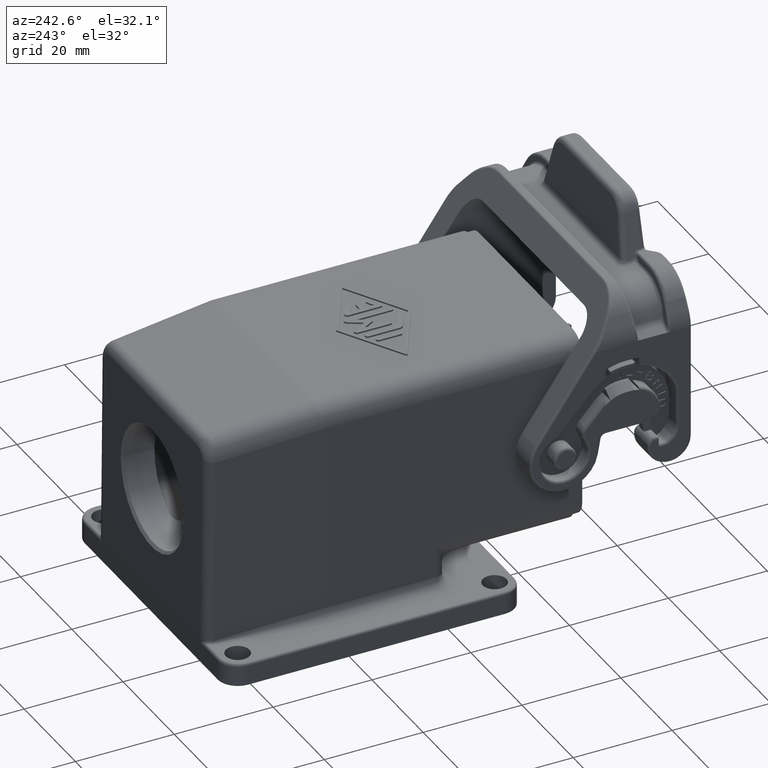
[diagram: clean part render]
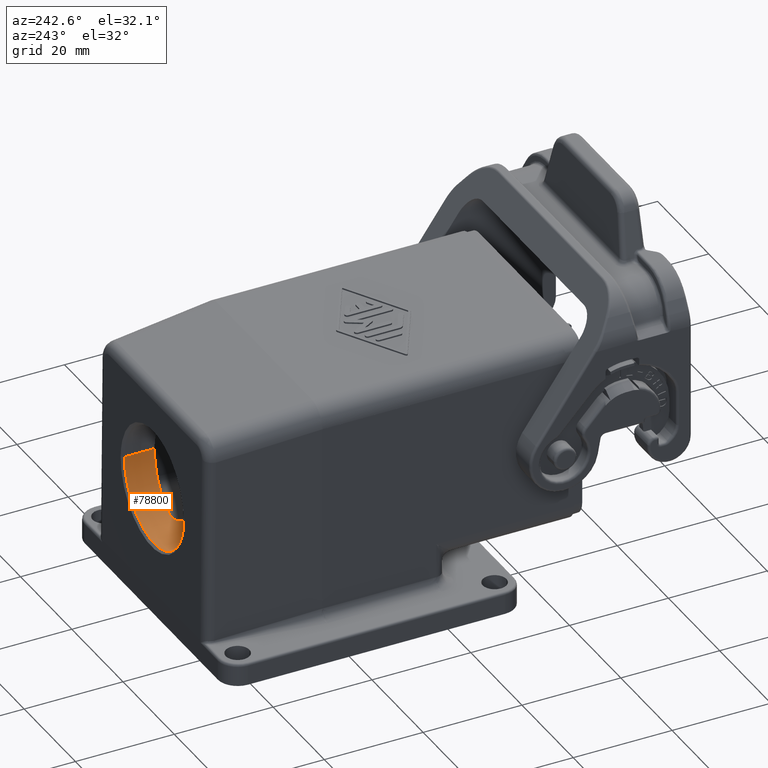
[diagram: same view with one face highlighted and labeled with its STEP entity id]
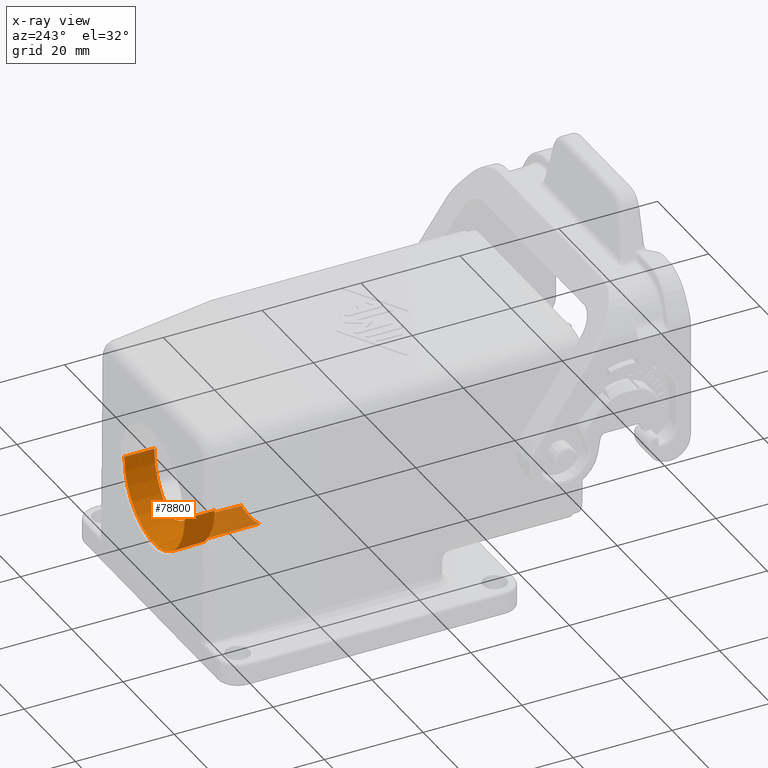
[diagram: x-ray of the same camera — body ghosted, the highlighted face saturated]
A machine part, auxiliary view. The second image highlights one B-rep face of the part: STEP entity #78800.
The next image is the same camera in x-ray: the body ghosted, the highlighted face saturated — about 18% of this face is hidden behind the body in this view.
In plain terms, the highlighted cylindrical surface (partial cylindrical patch) has radius 11.8 mm, axis along (0, -1, 0).
Its self-contained STEP definition (entity closure, byte-faithful):
#25710=CARTESIAN_POINT('',(39.5854375536447,55.9545149999983,
83.4000000000002));
#25720=DIRECTION('',(-0.999847695156391,-5.5502696614051E-17,
0.0174524064372832));
#25730=DIRECTION('',(-0.0174524064372832,-9.68803173089413E-19,
-0.999847695156391));
#25740=AXIS2_PLACEMENT_3D('',#25710,#25720,#25730);
#25750=ELLIPSE('',#25740,11.8017974709181,11.8);
#25760=CARTESIAN_POINT('',(39.5854375536447,44.1545149999983,
83.4000000000002));
#25770=VERTEX_POINT('',#25760);
#25820=CARTESIAN_POINT('',(39.4046438206235,50.3013075515534,
73.0423339721324));
#25830=VERTEX_POINT('',#25820);
#25840=EDGE_CURVE('',#25830,#25770,#25750,.T.);
#69730=CARTESIAN_POINT('',(39.5854375536447,67.7545149999983,
83.4000000000002));
#69740=VERTEX_POINT('',#69730);
#70150=CARTESIAN_POINT('',(39.4046438206235,61.6077224484432,
73.0423339721324));
#70160=VERTEX_POINT('',#70150);
#70190=EDGE_CURVE('',#69740,#70160,#25750,.T.);
#71520=CARTESIAN_POINT('',(41.1319105215989,61.6124777089039,
57.4000000000002));
#71530=DIRECTION('',(0.0174524056274811,-0.000304632873381272,
0.999847648762863));
#71540=DIRECTION('',(-0.999847695156391,-0.,0.0174524064372832));
#71550=AXIS2_PLACEMENT_3D('',#71520,#71530,#71540);
#71560=CYLINDRICAL_SURFACE('',#71550,2.);
#71610=CARTESIAN_POINT('',(41.3549903181106,59.6082791804822,
72.179928373066));
#71620=VERTEX_POINT('',#71610);
#71650=CARTESIAN_POINT('',(32.8316055413772,55.9545149999983,
83.4000000000002));
#71660=DIRECTION('',(1.,5.55111512312578E-17,5.55111512312578E-17));
#71670=DIRECTION('',(-5.55111512312578E-17,1.,-3.08148791101958E-33));
#71680=AXIS2_PLACEMENT_3D('',#71650,#71660,#71670);
#71690=CYLINDRICAL_SURFACE('',#71680,11.8);
#71700=CARTESIAN_POINT('',(39.4046438206235,61.6077224484432,
73.0423339721324));
#71710=CARTESIAN_POINT('',(39.4040789657357,61.5484323183061,
73.009973457282));
#71720=CARTESIAN_POINT('',(39.4061607593629,61.4888464827794,
72.9781136203391));
#71730=CARTESIAN_POINT('',(39.4109686615533,61.4291532338117,
72.9468504167947));
#71740=CARTESIAN_POINT('',(39.4157756365618,61.3694714964146,
72.9155932422165));
#71750=CARTESIAN_POINT('',(39.4233099960518,61.3096670823848,
72.8849247420731));
#71760=CARTESIAN_POINT('',(39.4336439603677,61.2499762870718,
72.8549495137717));
#71770=CARTESIAN_POINT('',(39.4388108455611,61.2201314494999,
72.8399621808815));
#71780=CARTESIAN_POINT('',(39.4446723708185,61.1903409762792,
72.82516077797));
#71790=CARTESIAN_POINT('',(39.4512416317638,61.1606012058756,
72.8105398429867));
#71800=CARTESIAN_POINT('',(39.4578127259053,61.1308531363901,
72.7959148279337));
#71810=CARTESIAN_POINT('',(39.4650986410752,61.1011292725277,
72.7814575287472));
#71820=CARTESIAN_POINT('',(39.4731052133295,61.0714798014428,
72.7671889313891));
#71830=CARTESIAN_POINT('',(39.4811117754899,61.0418303677375,
72.7529203520197));
#71840=CARTESIAN_POINT('',(39.4898389391247,61.0122556033746,
72.7388406047429));
#71850=CARTESIAN_POINT('',(39.4992878830868,60.9828065840256,
72.7249691454312));
#71860=CARTESIAN_POINT('',(39.5087368232148,60.9533575766263,
72.7110976917482));
#71870=CARTESIAN_POINT('',(39.5189074613771,60.9240346012451,
72.6974346544643));
#71880=CARTESIAN_POINT('',(39.5297963712396,60.8948886389695,
72.6839975593809));
#71890=CARTESIAN_POINT('',(39.5406852863439,60.8657426626636,
72.6705604578291));
#71900=CARTESIAN_POINT('',(39.5522923636918,60.8367739895759,
72.6573494218211));
#71910=CARTESIAN_POINT('',(39.5646098504691,60.8080325091868,
72.6443797116075));
#71920=CARTESIAN_POINT('',(39.5769273548054,60.7792909878256,
72.631409982905));
#71930=CARTESIAN_POINT('',(39.5899551328888,60.7507769432129,
72.6186816945372));
#71940=CARTESIAN_POINT('',(39.6036816377403,60.7225381772426,
72.6062075718839));
#71950=CARTESIAN_POINT('',(39.6174006189232,60.6943148892921,
72.5937402864527));
#71960=CARTESIAN_POINT('',(39.63185104043,60.6662964693168,
72.5814958458338));
#71970=CARTESIAN_POINT('',(39.6470445636071,60.6385062179181,
72.5694771007827));
#71980=CARTESIAN_POINT('',(39.6622364487675,60.6107189625921,
72.557459651475));
#71990=CARTESIAN_POINT('',(39.6781648503385,60.5831730264674,
72.5456736630296));
#72000=CARTESIAN_POINT('',(39.6948167348401,60.5559288041611,
72.5341364354674));
#72010=CARTESIAN_POINT('',(39.7114685895875,60.5286846305359,
72.5225992285205));
#72020=CARTESIAN_POINT('',(39.7288437124712,60.5017425747028,
72.5113109402481));
#72030=CARTESIAN_POINT('',(39.7469224570916,60.4751620909161,
72.5002867065394));
#72040=CARTESIAN_POINT('',(39.7650011927533,60.4485816203013,
72.4892624782938));
#72050=CARTESIAN_POINT('',(39.7837832909538,60.4223631234538,
72.4785024535253));
#72060=CARTESIAN_POINT('',(39.8032430607411,60.3965636380467,
72.4680192143703));
#72070=CARTESIAN_POINT('',(39.8227028465425,60.3707641314086,
72.4575359665882));
#72080=CARTESIAN_POINT('',(39.8428400056425,60.3453840223758,
72.4473296403029));
#72090=CARTESIAN_POINT('',(39.863623717833,60.3204765817706,
72.4374100018961));
#72100=CARTESIAN_POINT('',(39.884407476022,60.2955690860403,
72.4274903415353));
#72110=CARTESIAN_POINT('',(39.9058374580062,60.2711346149375,
72.4178574877515));
#72120=CARTESIAN_POINT('',(39.9278789972028,60.2472214796465,
72.4085182491357));
#72130=CARTESIAN_POINT('',(39.9499303846547,60.223297659863,
72.3991748377076));
#72140=CARTESIAN_POINT('',(39.9725424953691,60.1999455502473,
72.3901443678967));
#72150=CARTESIAN_POINT('',(39.9958483416693,60.1770422306044,
72.3813674266366));
#72160=CARTESIAN_POINT('',(40.0191518199114,60.1541412381197,
72.372591377183));
#72170=CARTESIAN_POINT('',(40.0431224315338,60.1317206468296,
72.3640813902609));
#72180=CARTESIAN_POINT('',(40.0677243201158,60.1098392066227,
72.3558485732111));
#72190=CARTESIAN_POINT('',(40.0923261351434,60.0879578318367,
72.3476157807756));
#72200=CARTESIAN_POINT('',(40.1175588104793,60.0666160337602,
72.3396602978059));
#72210=CARTESIAN_POINT('',(40.1433789389496,60.0458693651196,
72.3319911700876));
#72220=CARTESIAN_POINT('',(40.1691990333678,60.0251227238401,
72.3243220524834));
#72230=CARTESIAN_POINT('',(40.195606112001,60.0049716138672,
72.3169394153947));
#72240=CARTESIAN_POINT('',(40.2225504366717,59.9854666888042,
72.3098499341744));
#72250=CARTESIAN_POINT('',(40.2494947698635,59.9659617575728,
72.302760450712));
#72260=CARTESIAN_POINT('',(40.2769758415107,59.9471033757515,
72.2959642313368));
#72270=CARTESIAN_POINT('',(40.3049391250891,59.9289359414165,
72.2894654412839));
#72280=CARTESIAN_POINT('',(40.3329024641727,59.9107684710205,
72.2829666383314));
#72290=CARTESIAN_POINT('',(40.3613474846686,59.8932922626645,
72.2767653536093));
#72300=CARTESIAN_POINT('',(40.3902167385427,59.8765444657443,
72.2708632468723));
#72310=CARTESIAN_POINT('',(40.4190861006825,59.8597966060164,
72.2649611180012));
#72320=CARTESIAN_POINT('',(40.4483791611256,59.8437774107615,
72.2593582347567));
#72330=CARTESIAN_POINT('',(40.4780377434165,59.8285161816246,
72.2540538829244));
#72340=CARTESIAN_POINT('',(40.5076937819789,59.8132562613981,
72.2487499860305));
#72350=CARTESIAN_POINT('',(40.5378406179732,59.798689731669,
72.2437221970934));
#72360=CARTESIAN_POINT('',(40.5684236254925,59.7848601555936,
72.2389760331319));
#72370=CARTESIAN_POINT('',(40.5990064967986,59.7710306411135,
72.2342298903094));
#72380=CARTESIAN_POINT('',(40.6300249057063,59.7579384253263,
72.2297654721376));
#72390=CARTESIAN_POINT('',(40.6614171946643,59.7456218127099,
72.2255868550242));
#72400=CARTESIAN_POINT('',(40.6928094201576,59.7333052249937,
72.2214082463586));
#72410=CARTESIAN_POINT('',(40.7245749228773,59.7217645051509,
72.2175155102444));
#72420=CARTESIAN_POINT('',(40.7566470149626,59.711031128262,
72.2139110240401));
#72430=CARTESIAN_POINT('',(40.7887190982379,59.7002977543214,
72.2103065388259));
#72440=CARTESIAN_POINT('',(40.8210971403468,59.6903719376967,
72.2069903592945));
#72450=CARTESIAN_POINT('',(40.8537113713726,59.681277348914,
72.2039630942596));
#72460=CARTESIAN_POINT('',(40.8863256500591,59.6721827468411,
72.2009358248009));
#72470=CARTESIAN_POINT('',(40.9191754782109,59.6639195302647,
72.1981975093489));
#72480=CARTESIAN_POINT('',(40.9521901137362,59.6565030667921,
72.1957470417117));
#72490=CARTESIAN_POINT('',(40.9852048570132,59.649086579114,
72.1932965660768));
#72500=CARTESIAN_POINT('',(41.0183837790138,59.6425169408924,
72.1911339610907));
#72510=CARTESIAN_POINT('',(41.0516574389363,59.6368012038341,
72.1892565673353));
#72520=CARTESIAN_POINT('',(41.0849190793229,59.6310875314873,
72.1873798517559));
#72530=CARTESIAN_POINT('',(41.1182966746719,59.6262202351983,
72.1857858655764));
#72540=CARTESIAN_POINT('',(41.1519101432804,59.6221892045191,
72.1844676484133));
#72550=CARTESIAN_POINT('',(41.1855087208117,59.6181599596237,
72.1831500152325));
#72560=CARTESIAN_POINT('',(41.2192784377786,59.6149772335514,
72.1821115088028));
#72570=CARTESIAN_POINT('',(41.253149312756,59.6126553802518,
72.1813544062416));
#72580=CARTESIAN_POINT('',(41.2870201053218,59.6103335326016,
72.1805973055226));
#72590=CARTESIAN_POINT('',(41.3209914163416,59.6088726335216,
72.1801216282956));
#72600=CARTESIAN_POINT('',(41.3549903181107,59.6082791804838,
72.1799283730719));
#72610=B_SPLINE_CURVE_WITH_KNOTS('',3,(#71700,#71710,#71720,#71730,
#71740,#71750,#71760,#71770,#71780,#71790,#71800,#71810,#71820,#71830,
#71840,#71850,#71860,#71870,#71880,#71890,#71900,#71910,#71920,#71930,
#71940,#71950,#71960,#71970,#71980,#71990,#72000,#72010,#72020,#72030,
#72040,#72050,#72060,#72070,#72080,#72090,#72100,#72110,#72120,#72130,
#72140,#72150,#72160,#72170,#72180,#72190,#72200,#72210,#72220,#72230,
#72240,#72250,#72260,#72270,#72280,#72290,#72300,#72310,#72320,#72330,
#72340,#72350,#72360,#72370,#72380,#72390,#72400,#72410,#72420,#72430,
#72440,#72450,#72460,#72470,#72480,#72490,#72500,#72510,#72520,#72530,
#72540,#72550,#72560,#72570,#72580,#72590,#72600),.UNSPECIFIED.,.F.,.F.,
(4,3,3,3,3,3,3,3,3,3,3,3,3,3,3,3,3,3,3,3,3,3,3,3,3,3,3,3,3,3,4),(0.,
0.202649347362717,0.405352269890127,0.506700113775235,0.608196848802629,
0.709846691322581,0.811536266766206,0.913159866414404,1.01462344306998,
1.11607665449242,1.21782222512383,1.31973457468774,1.42168076757122,
1.52353427099743,1.62518052052965,1.72659217138928,1.82825766222322,
1.93017553580155,2.03220102651451,2.13418892217548,2.23600036451093,
2.33750988331479,2.43902440768609,2.54085351478104,2.64285367715966,
2.744874377132,2.84676554760481,2.94838491458542,3.04982204214769,
3.15156892152212,3.25352609733543),.UNSPECIFIED.);
#72620=SURFACE_CURVE('',#72610,(#71560,#71690),.CURVE_3D.);
#72630=EDGE_CURVE('',#70160,#71620,#72620,.T.);
#76260=CARTESIAN_POINT('',(32.8316055413772,55.9545149999983,
83.4000000000002));
#76270=DIRECTION('',(1.,5.55111512312578E-17,5.55111512312578E-17));
#76280=DIRECTION('',(-5.55111512312578E-17,1.,-3.08148791101958E-33));
#76290=AXIS2_PLACEMENT_3D('',#76260,#76270,#76280);
#76300=CYLINDRICAL_SURFACE('',#76290,11.8);
#76310=CARTESIAN_POINT('',(32.8316055413772,67.7545149999983,
83.4000000000002));
#76320=DIRECTION('',(1.,5.55111512312578E-17,5.55111512312578E-17));
#76330=VECTOR('',#76320,1.);
#76340=LINE('',#76310,#76330);
#76350=CARTESIAN_POINT('',(33.5192522370875,67.7545149999983,
83.4000000000002));
#76360=VERTEX_POINT('',#76350);
#76370=EDGE_CURVE('',#76360,#69740,#76340,.T.);
#76380=ORIENTED_EDGE('',*,*,#76370,.F.);
#76390=ORIENTED_EDGE('',*,*,#70190,.F.);
#76400=ORIENTED_EDGE('',*,*,#72630,.F.);
#76410=CARTESIAN_POINT('',(93.1316055413772,58.7045149999983,
57.4000000000002));
#76420=DIRECTION('',(-0.0174524064372835,-0.999847695156391,
-9.68803173089419E-19));
#76430=DIRECTION('',(0.999847695156391,-0.0174524064372835,
-8.4546172068172E-21));
#76440=AXIS2_PLACEMENT_3D('',#76410,#76420,#76430);
#76450=PLANE('',#76440);
#76460=CARTESIAN_POINT('',(41.3549903181106,59.6082791804822,
72.179928373066));
#76470=CARTESIAN_POINT('',(42.3113741435073,59.5915854387136,
72.1744921336425));
#76480=CARTESIAN_POINT('',(43.2677581730514,59.5748916933826,
72.1690971002033));
#76490=CARTESIAN_POINT('',(44.2241423992346,59.5581979446182,
72.1637430950206));
#76500=CARTESIAN_POINT('',(45.1805266254171,59.5415041958539,
72.1583890898379));
#76510=CARTESIAN_POINT('',(46.136911048239,59.5248104436576,
72.1530761129213));
#76520=CARTESIAN_POINT('',(47.0932956601915,59.5081166881597,
72.1478039902469));
#76530=CARTESIAN_POINT('',(48.0496802721432,59.4914229326617,
72.1425318675725));
#76540=CARTESIAN_POINT('',(49.0060650732258,59.4747291738626,
72.1373005991468));
#76550=CARTESIAN_POINT('',(49.9624500559285,59.4580354118931,
72.1321100145842));
#76560=CARTESIAN_POINT('',(50.9188350386366,59.4413416499236,
72.1269194300216));
#76570=CARTESIAN_POINT('',(51.8752202029383,59.4246478847843,
72.1217695293269));
#76580=CARTESIAN_POINT('',(52.8316055413951,59.4079541166052,
72.1166601456889));
#76590=B_SPLINE_CURVE_WITH_KNOTS('',3,(#76460,#76470,#76480,#76490,
#76500,#76510,#76520,#76530,#76540,#76550,#76560,#76570,#76580),
.UNSPECIFIED.,.F.,.F.,(4,3,3,3,4),(0.,2.86963477283941,5.73926933197676,
8.60890370643045,11.4785378141151),.UNSPECIFIED.);
#76600=SURFACE_CURVE('',#76590,(#76450,#71690),.CURVE_3D.);
#76610=CARTESIAN_POINT('',(52.8316055413772,59.4079541166055,
72.116660145689));
#76620=VERTEX_POINT('',#76610);
#76630=EDGE_CURVE('',#71620,#76620,#76600,.T.);
#76640=ORIENTED_EDGE('',*,*,#76630,.F.);
#76650=CARTESIAN_POINT('',(52.8316055413772,55.9545149999983,
83.4000000000002));
#76660=DIRECTION('',(1.,5.55111512312578E-17,5.55111512312578E-17));
#76670=DIRECTION('',(-5.55111512312578E-17,1.,-3.08148791101958E-33));
#76680=AXIS2_PLACEMENT_3D('',#76650,#76660,#76670);
#76690=CIRCLE('',#76680,11.8);
#76700=CARTESIAN_POINT('',(52.8316055413772,52.5010758833911,
72.116660145689));
#76710=VERTEX_POINT('',#76700);
#76720=EDGE_CURVE('',#76710,#76620,#76690,.T.);
#76730=ORIENTED_EDGE('',*,*,#76720,.T.);
#76740=CARTESIAN_POINT('',(93.1316055413772,53.2045149999983,
57.4000000000002));
#76750=DIRECTION('',(0.0174524064372836,-0.999847695156391,
9.68803173089426E-19));
#76760=DIRECTION('',(0.999847695156391,0.0174524064372836,
-8.45461720681731E-21));
#76770=AXIS2_PLACEMENT_3D('',#76740,#76750,#76760);
#76780=PLANE('',#76770);
#76790=CARTESIAN_POINT('',(41.3549903181106,52.3007508195144,
72.179928373066));
#76800=CARTESIAN_POINT('',(42.3113741435073,52.317444561283,
72.1744921336425));
#76810=CARTESIAN_POINT('',(43.2677581730514,52.334138306614,
72.1690971002034));
#76820=CARTESIAN_POINT('',(44.2241423992346,52.3508320553784,
72.1637430950206));
#76830=CARTESIAN_POINT('',(45.1805266254171,52.3675258041427,
72.1583890898379));
#76840=CARTESIAN_POINT('',(46.136911048239,52.384219556339,
72.1530761129213));
#76850=CARTESIAN_POINT('',(47.0932956601915,52.4009133118369,
72.1478039902469));
#76860=CARTESIAN_POINT('',(48.0496802721432,52.4176070673349,
72.1425318675725));
#76870=CARTESIAN_POINT('',(49.0060650732258,52.434300826134,
72.1373005991468));
#76880=CARTESIAN_POINT('',(49.9624500559285,52.4509945881035,
72.1321100145842));
#76890=CARTESIAN_POINT('',(50.9188350386366,52.467688350073,
72.1269194300216));
#76900=CARTESIAN_POINT('',(51.8752202029383,52.4843821152123,
72.1217695293269));
#76910=CARTESIAN_POINT('',(52.8316055413951,52.5010758833914,
72.1166601456889));
#76920=B_SPLINE_CURVE_WITH_KNOTS('',3,(#76790,#76800,#76810,#76820,
#76830,#76840,#76850,#76860,#76870,#76880,#76890,#76900,#76910),
.UNSPECIFIED.,.F.,.F.,(4,3,3,3,4),(0.,2.86963477283935,5.73926933197682,
8.60890370643053,11.4785378583251),.UNSPECIFIED.);
#76930=SURFACE_CURVE('',#76920,(#76780,#71690),.CURVE_3D.);
#76940=CARTESIAN_POINT('',(41.3549903181107,52.3007508195128,
72.1799283730719));
#76950=VERTEX_POINT('',#76940);
#76960=EDGE_CURVE('',#76950,#76710,#76930,.T.);
#76970=ORIENTED_EDGE('',*,*,#76960,.T.);
#76980=CARTESIAN_POINT('',(41.1319105215989,50.2965522910927,
57.4000000000002));
#76990=DIRECTION('',(-0.0174524056274811,-0.000304632873381275,
-0.999847648762863));
#77000=DIRECTION('',(0.999847695156391,0.,-0.0174524064372832));
#77010=AXIS2_PLACEMENT_3D('',#76980,#76990,#77000);
#77020=CYLINDRICAL_SURFACE('',#77010,2.);
#77030=CARTESIAN_POINT('',(41.3549903181107,52.3007508195128,
72.1799283730719));
#77040=CARTESIAN_POINT('',(41.3209914163417,52.300157366475,
72.1801216282956));
#77050=CARTESIAN_POINT('',(41.2870201053218,52.298696467395,
72.1805973055226));
#77060=CARTESIAN_POINT('',(41.2531493127561,52.2963746197448,
72.1813544062416));
#77070=CARTESIAN_POINT('',(41.2192784377775,52.2940527664451,
72.1821115088029));
#77080=CARTESIAN_POINT('',(41.1855087208105,52.2908700403728,
72.1831500152325));
#77090=CARTESIAN_POINT('',(41.1519101432804,52.2868407954775,
72.1844676484133));
#77100=CARTESIAN_POINT('',(41.1182966746747,52.2828097647987,
72.1857858655763));
#77110=CARTESIAN_POINT('',(41.0849190793257,52.2779424685098,
72.1873798517558));
#77120=CARTESIAN_POINT('',(41.0516574389363,52.2722287961625,
72.1892565673353));
#77130=CARTESIAN_POINT('',(41.0183837790138,52.2665130591041,
72.1911339610907));
#77140=CARTESIAN_POINT('',(40.9852048570132,52.2599434208826,
72.1932965660768));
#77150=CARTESIAN_POINT('',(40.9521901137362,52.2525269332045,
72.1957470417117));
#77160=CARTESIAN_POINT('',(40.9191754782108,52.2451104697319,
72.1981975093489));
#77170=CARTESIAN_POINT('',(40.8863256500591,52.2368472531555,
72.2009358248009));
#77180=CARTESIAN_POINT('',(40.8537113713726,52.2277526510826,
72.2039630942596));
#77190=CARTESIAN_POINT('',(40.8210971403459,52.2186580622997,
72.2069903592946));
#77200=CARTESIAN_POINT('',(40.7887190982372,52.208732245675,
72.210306538826));
#77210=CARTESIAN_POINT('',(40.7566470149626,52.1979988717346,
72.2139110240401));
#77220=CARTESIAN_POINT('',(40.7245749228757,52.1872654948452,
72.2175155102446));
#77230=CARTESIAN_POINT('',(40.692809420156,52.1757247750023,
72.2214082463589));
#77240=CARTESIAN_POINT('',(40.6614171946643,52.1634081872866,
72.2255868550242));
#77250=CARTESIAN_POINT('',(40.6300249057041,52.1510915746694,
72.2297654721379));
#77260=CARTESIAN_POINT('',(40.5990064967964,52.1379993588822,
72.2342298903097));
#77270=CARTESIAN_POINT('',(40.5684236254925,52.124169844403,
72.2389760331319));
#77280=CARTESIAN_POINT('',(40.5378406179732,52.1103402683276,
72.2437221970934));
#77290=CARTESIAN_POINT('',(40.5076937819789,52.0957737385985,
72.2487499860305));
#77300=CARTESIAN_POINT('',(40.4780377434165,52.080513818372,
72.2540538829244));
#77310=CARTESIAN_POINT('',(40.4483791611257,52.0652525892352,
72.2593582347567));
#77320=CARTESIAN_POINT('',(40.4190861006824,52.0492333939802,
72.2649611180012));
#77330=CARTESIAN_POINT('',(40.3902167385427,52.0324855342523,
72.2708632468723));
#77340=CARTESIAN_POINT('',(40.3613474846686,52.0157377373321,
72.2767653536093));
#77350=CARTESIAN_POINT('',(40.3329024641727,51.9982615289761,
72.2829666383314));
#77360=CARTESIAN_POINT('',(40.3049391250891,51.9800940585801,
72.2894654412839));
#77370=CARTESIAN_POINT('',(40.2769758415124,51.9619266242462,
72.2959642313364));
#77380=CARTESIAN_POINT('',(40.2494947698651,51.943068242425,
72.3027604507115));
#77390=CARTESIAN_POINT('',(40.2225504366717,51.9235633111924,
72.3098499341744));
#77400=CARTESIAN_POINT('',(40.195606112001,51.9040583861294,
72.3169394153947));
#77410=CARTESIAN_POINT('',(40.1691990333678,51.8839072761565,
72.3243220524834));
#77420=CARTESIAN_POINT('',(40.1433789389496,51.863160634877,
72.3319911700876));
#77430=CARTESIAN_POINT('',(40.1175588104793,51.8424139662364,
72.339660297806));
#77440=CARTESIAN_POINT('',(40.0923261351434,51.8210721681599,
72.3476157807756));
#77450=CARTESIAN_POINT('',(40.0677243201158,51.7991907933739,
72.3558485732111));
#77460=CARTESIAN_POINT('',(40.0431224315338,51.777309353167,
72.3640813902609));
#77470=CARTESIAN_POINT('',(40.0191518199115,51.7548887618769,
72.372591377183));
#77480=CARTESIAN_POINT('',(39.9958483416693,51.7319877693922,
72.3813674266366));
#77490=CARTESIAN_POINT('',(39.9725424953691,51.7090844497493,
72.3901443678967));
#77500=CARTESIAN_POINT('',(39.9499303846547,51.6857323401336,
72.3991748377076));
#77510=CARTESIAN_POINT('',(39.9278789972028,51.6618085203501,
72.4085182491357));
#77520=CARTESIAN_POINT('',(39.9058374580076,51.6378953850606,
72.4178574877509));
#77530=CARTESIAN_POINT('',(39.8844074760233,51.6134609139579,
72.4274903415347));
#77540=CARTESIAN_POINT('',(39.863623717833,51.588553418226,
72.4374100018962));
#77550=CARTESIAN_POINT('',(39.8428400056426,51.5636459776209,
72.4473296403029));
#77560=CARTESIAN_POINT('',(39.8227028465424,51.538265868588,
72.4575359665883));
#77570=CARTESIAN_POINT('',(39.8032430607412,51.5124663619499,
72.4680192143703));
#77580=CARTESIAN_POINT('',(39.7837832909538,51.4866668765427,
72.4785024535254));
#77590=CARTESIAN_POINT('',(39.7650011927533,51.4604483796954,
72.4892624782937));
#77600=CARTESIAN_POINT('',(39.7469224570916,51.4338679090805,
72.5002867065395));
#77610=CARTESIAN_POINT('',(39.7288437124733,51.4072874252969,
72.5113109402468));
#77620=CARTESIAN_POINT('',(39.7114685895894,51.3803453694637,
72.5225992285192));
#77630=CARTESIAN_POINT('',(39.6948167348401,51.3531011958355,
72.5341364354674));
#77640=CARTESIAN_POINT('',(39.6781648503385,51.3258569735292,
72.5456736630296));
#77650=CARTESIAN_POINT('',(39.6622364487675,51.2983110374045,
72.557459651475));
#77660=CARTESIAN_POINT('',(39.6470445636071,51.2705237820785,
72.5694771007827));
#77670=CARTESIAN_POINT('',(39.63185104043,51.2427335306798,
72.5814958458338));
#77680=CARTESIAN_POINT('',(39.6174006189232,51.2147151107045,
72.5937402864527));
#77690=CARTESIAN_POINT('',(39.6036816377403,51.186491822754,
72.6062075718839));
#77700=CARTESIAN_POINT('',(39.5899551328897,51.1582530567855,
72.6186816945364));
#77710=CARTESIAN_POINT('',(39.5769273548063,51.1297390121729,
72.6314099829042));
#77720=CARTESIAN_POINT('',(39.5646098504691,51.1009974908098,
72.6443797116075));
#77730=CARTESIAN_POINT('',(39.5522923636918,51.0722560104207,
72.6573494218211));
#77740=CARTESIAN_POINT('',(39.5406852863439,51.0432873373331,
72.6705604578291));
#77750=CARTESIAN_POINT('',(39.5297963712396,51.0141413610271,
72.6839975593809));
#77760=CARTESIAN_POINT('',(39.5189074613771,50.9849953987516,
72.6974346544643));
#77770=CARTESIAN_POINT('',(39.5087368232148,50.9556724233703,
72.7110976917482));
#77780=CARTESIAN_POINT('',(39.4992878830868,50.926223415971,
72.7249691454312));
#77790=CARTESIAN_POINT('',(39.4898389391247,50.896774396622,
72.7388406047429));
#77800=CARTESIAN_POINT('',(39.4811117754899,50.8671996322591,
72.7529203520197));
#77810=CARTESIAN_POINT('',(39.4731052133295,50.8375501985538,
72.7671889313892));
#77820=CARTESIAN_POINT('',(39.4650986410752,50.807900727469,
72.7814575287472));
#77830=CARTESIAN_POINT('',(39.4578127259053,50.7781768636065,
72.7959148279337));
#77840=CARTESIAN_POINT('',(39.4512416317638,50.748428794121,
72.8105398429867));
#77850=CARTESIAN_POINT('',(39.4446723708185,50.7186890237174,
72.8251607779701));
#77860=CARTESIAN_POINT('',(39.4388108455611,50.6888985504967,
72.8399621808815));
#77870=CARTESIAN_POINT('',(39.4336439603677,50.6590537129248,
72.8549495137717));
#77880=CARTESIAN_POINT('',(39.4233099960518,50.5993629176118,
72.8849247420731));
#77890=CARTESIAN_POINT('',(39.4157756365618,50.539558503582,
72.9155932422165));
#77900=CARTESIAN_POINT('',(39.4109686615533,50.4798767661849,
72.9468504167947));
#77910=CARTESIAN_POINT('',(39.4061607593629,50.4201835172172,
72.9781136203391));
#77920=CARTESIAN_POINT('',(39.4040789657357,50.3605976816905,
73.009973457282));
#77930=CARTESIAN_POINT('',(39.4046438206235,50.3013075515534,
73.0423339721324));
#77940=B_SPLINE_CURVE_WITH_KNOTS('',3,(#77030,#77040,#77050,#77060,
#77070,#77080,#77090,#77100,#77110,#77120,#77130,#77140,#77150,#77160,
#77170,#77180,#77190,#77200,#77210,#77220,#77230,#77240,#77250,#77260,
#77270,#77280,#77290,#77300,#77310,#77320,#77330,#77340,#77350,#77360,
#77370,#77380,#77390,#77400,#77410,#77420,#77430,#77440,#77450,#77460,
#77470,#77480,#77490,#77500,#77510,#77520,#77530,#77540,#77550,#77560,
#77570,#77580,#77590,#77600,#77610,#77620,#77630,#77640,#77650,#77660,
#77670,#77680,#77690,#77700,#77710,#77720,#77730,#77740,#77750,#77760,
#77770,#77780,#77790,#77800,#77810,#77820,#77830,#77840,#77850,#77860,
#77870,#77880,#77890,#77900,#77910,#77920,#77930),.UNSPECIFIED.,.F.,.F.,
(4,3,3,3,3,3,3,3,3,3,3,3,3,3,3,3,3,3,3,3,3,3,3,3,3,3,3,3,3,3,4),(0.,
0.1019571758133,0.203704055187728,0.305141182750017,0.406760549730627,
0.508651720203449,0.610672420175797,0.712672582554398,0.814501689649354,
0.916016214020661,1.01752573282449,1.11933717515993,1.22132507082091,
1.32335056153388,1.4252684351122,1.52693392594613,1.62834557680576,
1.72999182633799,1.83184532976418,1.93379152264766,2.03570387221157,
2.13744944284303,2.23890265426547,2.34036623092103,2.44198983056921,
2.54367940601284,2.64532924853278,2.74682598356016,2.84817382744528,
3.05087674997269,3.2535260973354),.UNSPECIFIED.);
#77950=SURFACE_CURVE('',#77940,(#77020,#71690),.CURVE_3D.);
#77960=EDGE_CURVE('',#76950,#25830,#77950,.T.);
#77970=ORIENTED_EDGE('',*,*,#77960,.F.);
#77980=ORIENTED_EDGE('',*,*,#25840,.F.);
#77990=CARTESIAN_POINT('',(32.8316055413772,44.1545149999983,
83.4000000000002));
#78000=DIRECTION('',(1.,5.55111512312578E-17,5.55111512312578E-17));
#78010=VECTOR('',#78000,1.);
#78020=LINE('',#77990,#78010);
#78030=CARTESIAN_POINT('',(33.519252238067,44.1545149999983,
83.4000000000002));
#78040=VERTEX_POINT('',#78030);
#78050=EDGE_CURVE('',#78040,#25770,#78020,.T.);
#78060=ORIENTED_EDGE('',*,*,#78050,.T.);
#78070=CARTESIAN_POINT('',(33.5193077432162,44.1545167141051,
83.4063602607626));
#78080=CARTESIAN_POINT('',(33.5193474645627,44.1545191674545,
83.4109118852906));
#78090=CARTESIAN_POINT('',(33.5193871859444,44.1545242543458,
83.4154634991504));
#78100=CARTESIAN_POINT('',(33.5197645342658,44.1545975977553,
83.458703364005));
#78110=CARTESIAN_POINT('',(33.5201021551397,44.1548534882079,
83.4973909814709));
#78120=CARTESIAN_POINT('',(33.5224486283096,44.1579544057859,
83.7662713394989));
#78130=CARTESIAN_POINT('',(33.5244563515776,44.1673448393943,
83.9963371281105));
#78140=CARTESIAN_POINT('',(33.5348171172832,44.2506557911256,
85.1835940949612));
#78150=CARTESIAN_POINT('',(33.5430707297525,44.4344543670241,
86.1294326479643));
#78160=CARTESIAN_POINT('',(33.5591692561558,45.0332049175022,
87.9743517419897));
#78170=CARTESIAN_POINT('',(33.566939671157,45.4504819389059,
88.8648960558172));
#78180=CARTESIAN_POINT('',(33.5814011865071,46.4955504164479,
90.5223484814482));
#78190=CARTESIAN_POINT('',(33.5880360227251,47.1192852873038,
91.2828078088287));
#78200=CARTESIAN_POINT('',(33.599807152332,48.5403416597247,
92.6320074230768));
#78210=CARTESIAN_POINT('',(33.6048976961835,49.3321374537052,
93.215503604254));
#78220=CARTESIAN_POINT('',(33.6132537099309,51.0417084375369,
94.1733168470824));
#78230=CARTESIAN_POINT('',(33.6164866688309,51.9528397807687,
94.5439070517319));
#78240=CARTESIAN_POINT('',(33.6209130801739,53.8456812001813,
95.0513047158347));
#78250=CARTESIAN_POINT('',(33.6220893121567,54.8200336670398,
95.1861380551159));
#78260=CARTESIAN_POINT('',(33.6223134674687,56.7795575356589,
95.2118332057944));
#78270=CARTESIAN_POINT('',(33.6213605185541,57.7571117138525,
95.1025950333825));
#78280=CARTESIAN_POINT('',(33.6173685519531,59.6626390884063,
94.644996479455));
#78290=CARTESIAN_POINT('',(33.6143450043672,60.5832034053195,
94.2984095984547));
#78300=CARTESIAN_POINT('',(33.6063825815932,62.3173525523102,
93.3857077427903));
#78310=CARTESIAN_POINT('',(33.6014746878766,63.1241974286076,
92.8231443193793));
#78320=CARTESIAN_POINT('',(33.5900321364596,64.5801745733157,
91.5115975105512));
#78330=CARTESIAN_POINT('',(33.5835419476367,65.2236445215697,
90.7677114720225));
#78340=CARTESIAN_POINT('',(33.5693237979811,66.3118141611318,
89.1381382586734));
#78350=CARTESIAN_POINT('',(33.5616511567773,66.7522892353692,
88.2587916697385));
#78360=CARTESIAN_POINT('',(33.5455330832465,67.4057113202648,
86.4116155125689));
#78370=CARTESIAN_POINT('',(33.5371503512289,67.6161249914264,
85.4509717616741));
#78380=CARTESIAN_POINT('',(33.5201246323216,67.7946821353191,
83.4999517345218));
#78390=CARTESIAN_POINT('',(33.5115478714033,67.7621423428382,
82.5171645118379));
#78400=CARTESIAN_POINT('',(33.4946626910078,67.454975814744,
80.5824265319083));
#78410=CARTESIAN_POINT('',(33.486419927197,67.181562258476,
79.6379986432912));
#78420=CARTESIAN_POINT('',(33.4707142033832,66.4077239950018,
77.8385637511025));
#78430=CARTESIAN_POINT('',(33.4633123057294,65.9103210699128,
76.9905525679982));
#78440=CARTESIAN_POINT('',(33.4497521637163,64.7175389013625,
75.4370640349269));
#78450=CARTESIAN_POINT('',(33.4436465798767,64.0268166180516,
74.7376193542231));
#78460=CARTESIAN_POINT('',(33.4330657471945,62.488551011726,
73.5255281339256));
#78470=CARTESIAN_POINT('',(33.4286316145667,61.6469997561307,
73.0175913977404));
#78480=CARTESIAN_POINT('',(33.4216804372492,59.8578669218288,
72.2213344534336));
#78490=CARTESIAN_POINT('',(33.419190375862,58.9172526369547,
71.9361049647695));
#78500=CARTESIAN_POINT('',(33.4162960792719,56.9872630177866,
71.6045722939549));
#78510=CARTESIAN_POINT('',(33.4159030879295,56.0054004346622,
71.5595569568444));
#78520=CARTESIAN_POINT('',(33.4172435533548,54.0531578872607,
71.7131024673631));
#78530=CARTESIAN_POINT('',(33.4189718498725,53.0903776317374,
71.9110722494496));
#78540=CARTESIAN_POINT('',(33.4244648637769,51.235886302061,
72.5402888929896));
#78550=CARTESIAN_POINT('',(33.4282082398838,50.3513952646406,
72.9690913070183));
#78560=CARTESIAN_POINT('',(33.4375162790181,48.7086620241498,
74.0353561553217));
#78570=CARTESIAN_POINT('',(33.4430448371231,47.95682276317,
74.6686829079787));
#78580=CARTESIAN_POINT('',(33.4555958669011,46.626904476061,
76.1065274132295));
#78590=CARTESIAN_POINT('',(33.4625695554943,46.0540087020956,
76.9054568710966));
#78600=CARTESIAN_POINT('',(33.4775917012443,45.1187809183846,
78.6265204573362));
#78610=CARTESIAN_POINT('',(33.4855817740331,44.760102009068,
79.5419658313766));
#78620=CARTESIAN_POINT('',(33.5021510910833,44.2772053249089,
81.440448561953));
#78630=CARTESIAN_POINT('',(33.5106660002107,44.1548780030838,
82.416114660885));
#78640=CARTESIAN_POINT('',(33.5192453542981,44.1545144849731,
83.3992111975337));
#78650=CARTESIAN_POINT('',(33.5192765489088,44.1545147874267,
83.4027857477014));
#78660=CARTESIAN_POINT('',(33.5193077432162,44.1545167141051,
83.4063602607626));
#78670=B_SPLINE_CURVE_WITH_KNOTS('',3,(#78070,#78080,#78090,#78100,
#78110,#78120,#78130,#78140,#78150,#78160,#78170,#78180,#78190,#78200,
#78210,#78220,#78230,#78240,#78250,#78260,#78270,#78280,#78290,#78300,
#78310,#78320,#78330,#78340,#78350,#78360,#78370,#78380,#78390,#78400,
#78410,#78420,#78430,#78440,#78450,#78460,#78470,#78480,#78490,#78500,
#78510,#78520,#78530,#78540,#78550,#78560,#78570,#78580,#78590,#78600,
#78610,#78620,#78630,#78640,#78650,#78660),.UNSPECIFIED.,.T.,.F.,(1,3,2,
2,2,2,2,2,2,2,2,2,2,2,2,2,2,2,2,2,2,2,2,2,2,2,2,2,2,2,3,1),(
-0.0109511122474117,0.,0.0139446732466228,0.132472827265573,
0.837756754130355,3.77870296855333,6.77983745968423,9.78106487052999,
12.7822678203798,15.7835158460265,18.7847836262901,21.786052528903,
24.7873912193758,27.7886872573853,30.7900180869367,33.7912585035983,
36.7924054731193,39.7934201232514,42.7942114911496,45.7948575337922,
48.7952629659283,51.7955578962128,54.7957410235475,57.7958921564377,
60.7961246898653,63.7964172982833,66.7969176078924,69.7975449206817,
72.7983671719834,75.7993352340445,75.8102863462919,75.8242310195385),
.UNSPECIFIED.);
#78680=CARTESIAN_POINT('',(33.5191517930693,67.7545094027943,
83.3884902578284));
#78690=VERTEX_POINT('',#78680);
#78700=EDGE_CURVE('',#78690,#78040,#78670,.T.);
#78710=ORIENTED_EDGE('',*,*,#78700,.T.);
#78720=CARTESIAN_POINT('',(33.5192141630862,67.7545142102768,
83.395637151973));
#78730=VERTEX_POINT('',#78720);
#78740=EDGE_CURVE('',#78730,#78690,#78670,.T.);
#78750=ORIENTED_EDGE('',*,*,#78740,.T.);
#78760=EDGE_CURVE('',#76360,#78730,#78670,.T.);
#78770=ORIENTED_EDGE('',*,*,#78760,.T.);
#78780=EDGE_LOOP('',(#78770,#78750,#78710,#78060,#77980,#77970,#76970,
#76730,#76640,#76400,#76390,#76380));
#78790=FACE_OUTER_BOUND('',#78780,.T.);
#78800=ADVANCED_FACE('',(#78790),#76300,.F.);